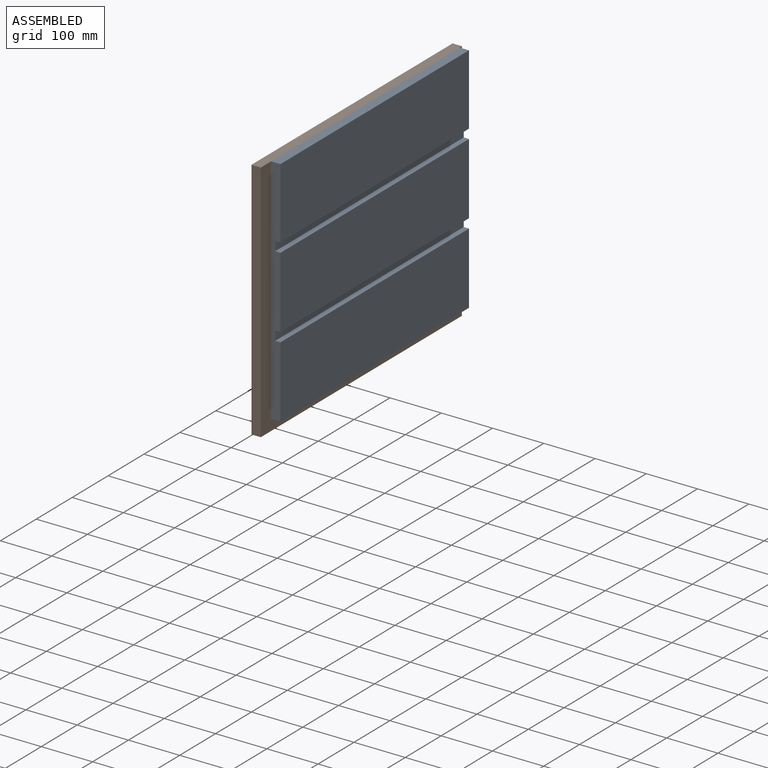
[diagram: assembled view]
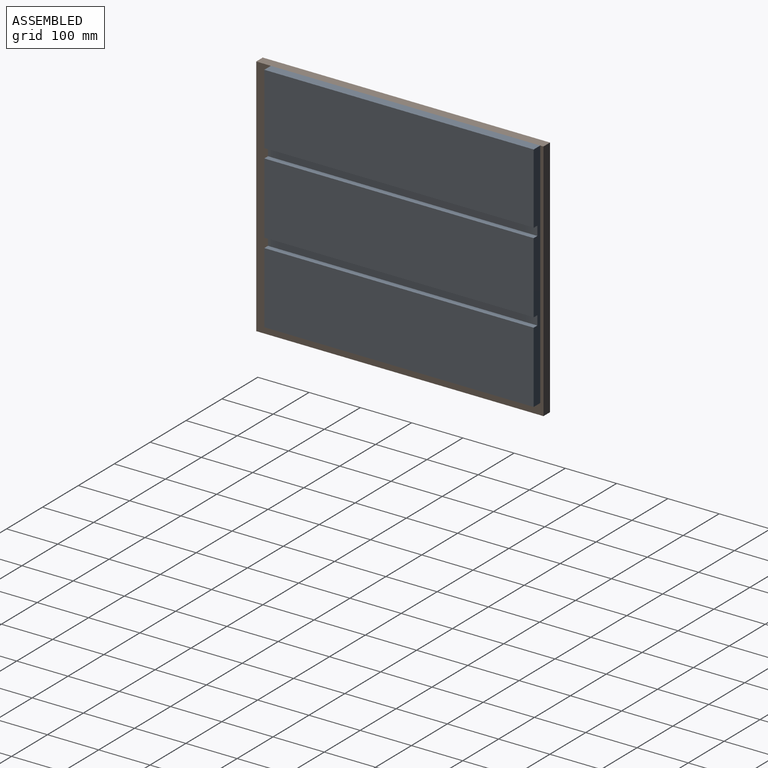
[diagram: assembled view, second angle]
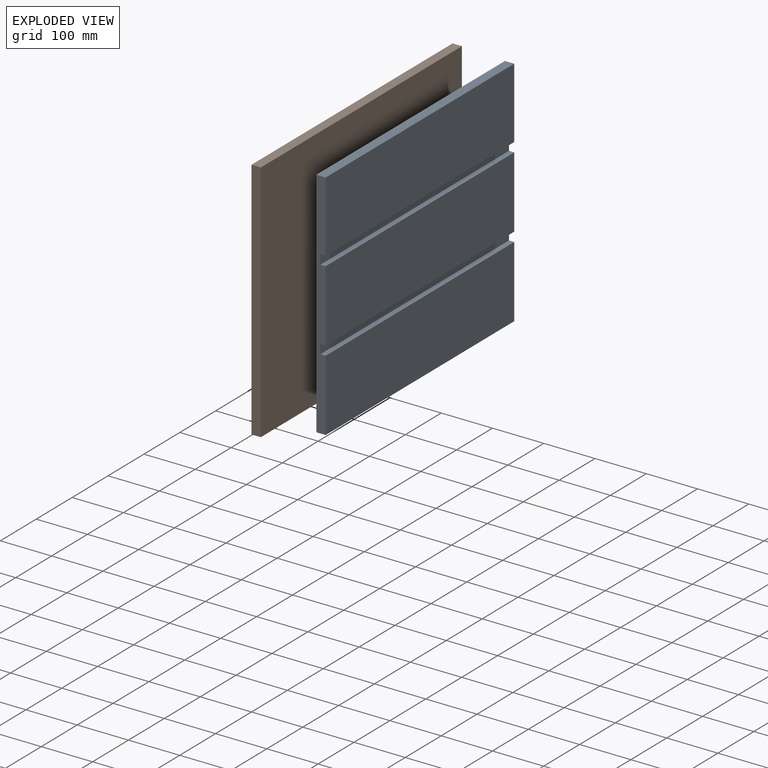
[diagram: exploded view]
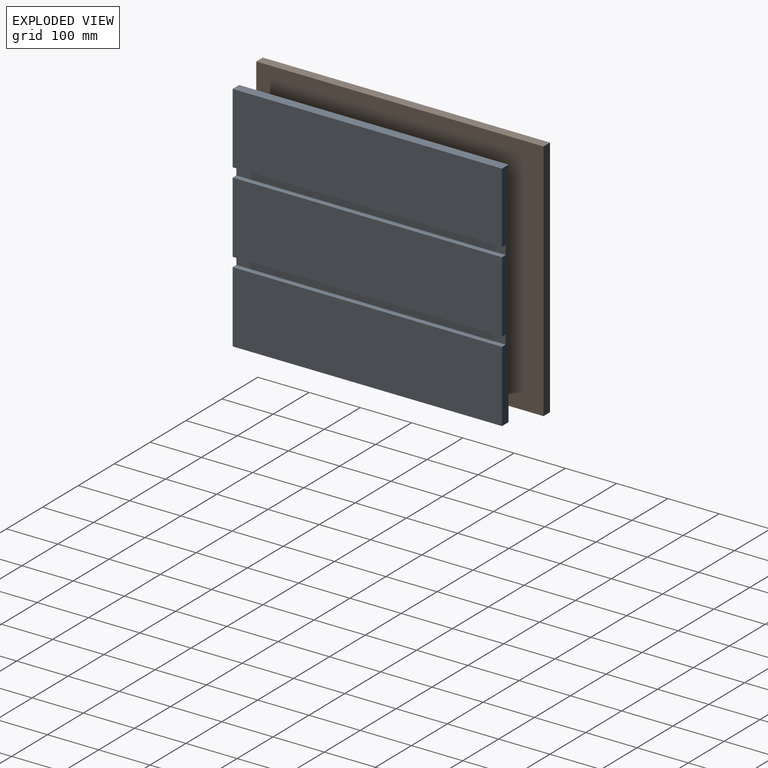
[diagram: exploded view, second angle]
ASSEMBLY  parts=2 mates=3
PART A: 14 faces, bbox 18.3x525.5x454 mm
  f0: plane 454.03x18.26mm, normal (0,1,0), area 7912mm2, adj f1,f3,f4,f5,f6,f7,f8,f9
  f1: plane 525.46x18.26mm, normal (0,0,1), area 9593mm2, adj f0,f2,f4,f5
  f2: plane 454.03x18.26mm, normal (0,-1,0), area 7912mm2, adj f1,f3,f4,f5,f6,f7,f8,f9
  f3: plane 525.46x10.32mm, normal (0,0,-1), area 5422.1mm2, adj f0,f2,f4,f13
  f4: plane 525.46x138.11mm, normal (1,0,0), area 72572.9mm2, adj f0,f1,f2,f3
  f5: plane 525.46x454.03mm, normal (-1,0,0), area 238573.1mm2, adj f0,f1,f2,f7
  f6: plane 525.46x10.32mm, normal (0,0,1), area 5422.1mm2, adj f0,f2,f8,f12
  f7: plane 525.46x18.26mm, normal (0,0,-1), area 9593mm2, adj f0,f2,f5,f8
  f8: plane 525.46x139.7mm, normal (1,0,0), area 73407.1mm2, adj f0,f2,f6,f7
  f9: plane 525.46x10.32mm, normal (0,0,1), area 5422.1mm2, adj f0,f2,f11,f13
  f10: plane 525.46x10.32mm, normal (0,0,-1), area 5422.1mm2, adj f0,f2,f11,f12
  f11: plane 525.46x139.7mm, normal (1,0,0), area 73407.1mm2, adj f0,f2,f9,f10
  f12: plane 525.46x18.26mm, normal (1,0,0), area 9593mm2, adj f0,f2,f6,f10
  f13: plane 525.46x18.26mm, normal (1,0,0), area 9593mm2, adj f0,f2,f3,f9
PART B: 6 faces, bbox 18.3x560.4x475.5 mm
  f0: plane 560.39x18.26mm, normal (0,0,1), area 10230.6mm2, adj f1,f3,f4,f5
  f1: plane 475.46x18.26mm, normal (0,-1,0), area 8680mm2, adj f0,f2,f4,f5
  f2: plane 560.39x18.26mm, normal (0,0,-1), area 10230.6mm2, adj f1,f3,f4,f5
  f3: plane 475.46x18.26mm, normal (0,1,0), area 8680mm2, adj f0,f2,f4,f5
  f4: plane 560.39x475.46mm, normal (1,0,0), area 266439.7mm2, adj f0,f1,f2,f3
  f5: plane 560.39x475.46mm, normal (-1,0,0), area 266439.7mm2, adj f0,f1,f2,f3
PLACE A t=(18.26,895.98,248.44)mm
PLACE B t=(0,884.87,-457.45)mm
MATE planar B.f0 <-> A.f1  axis (0,0,1) through (9.13,280.19,475.46)mm
MATE planar B.f4 <-> A.f5  axis (1,0,0) through (18.26,280.19,237.73)mm
MATE fastened B.f4 <-> A.f5  axis (1,0,0) through (18.26,554.04,475.46)mm
